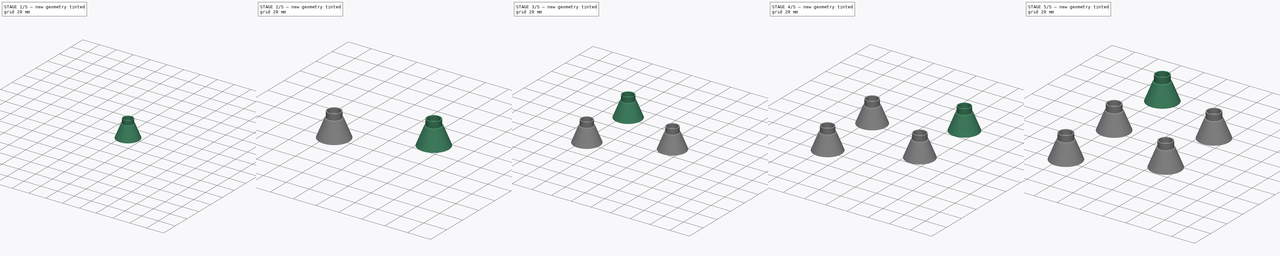
[diagram: build sequence overview — one tinted view per stage of 5, left to right]
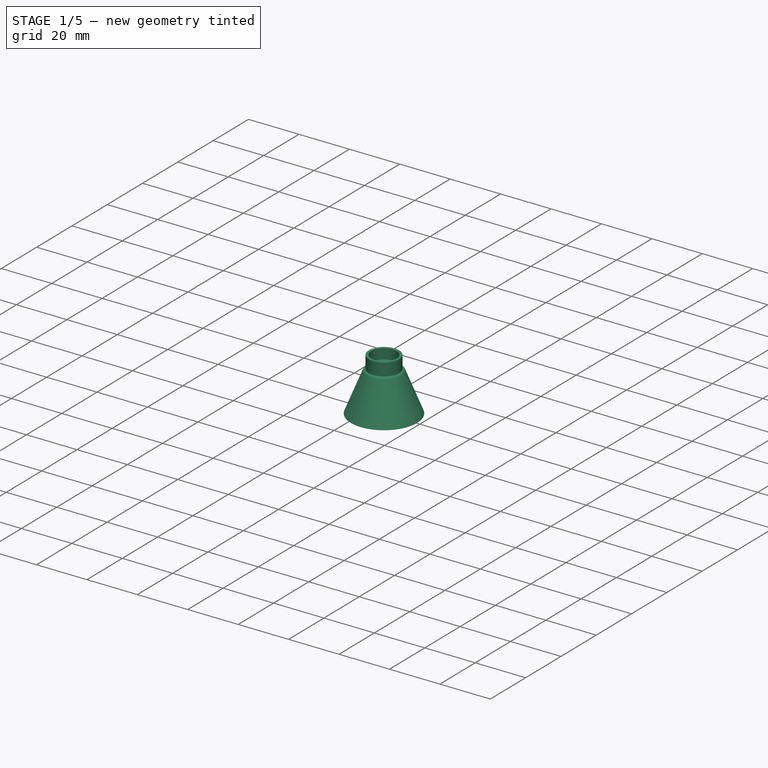
[diagram: stage 1 of 5 — iso view after this stage's code; geometry added in this stage tinted green]
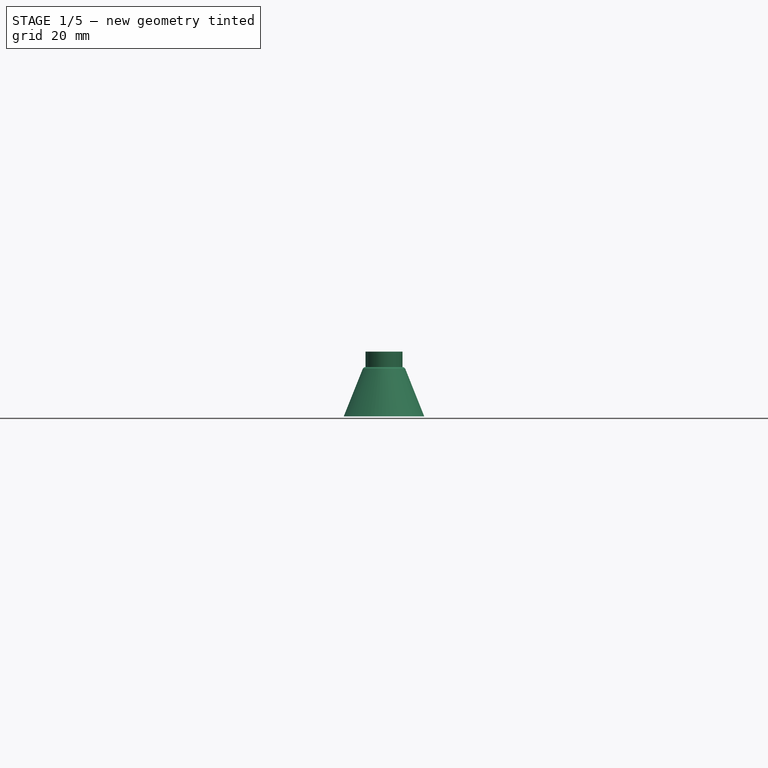
[diagram: stage 1 of 5 — front view after this stage's code; geometry added in this stage tinted green]
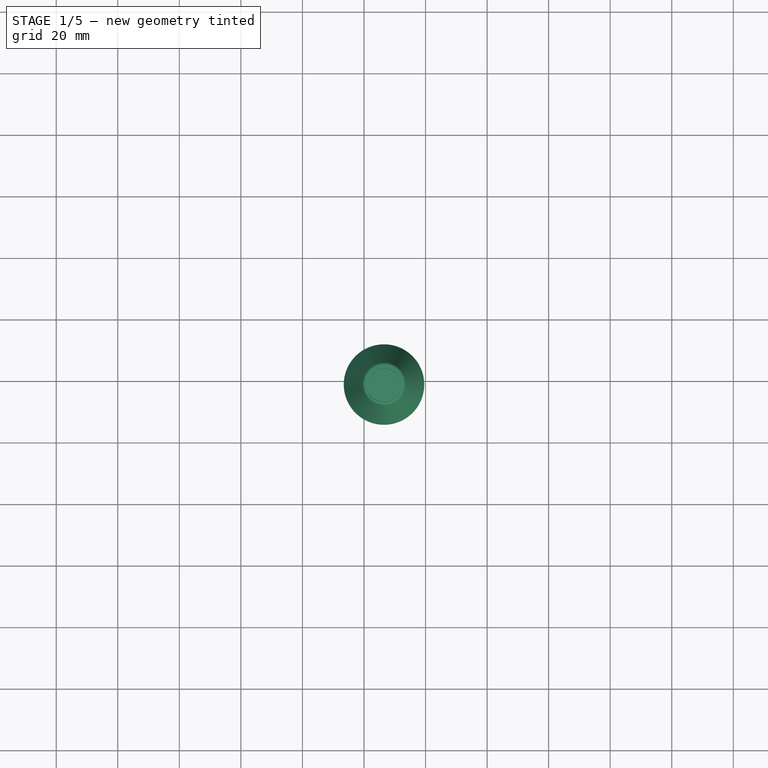
[diagram: stage 1 of 5 — top view after this stage's code; geometry added in this stage tinted green]
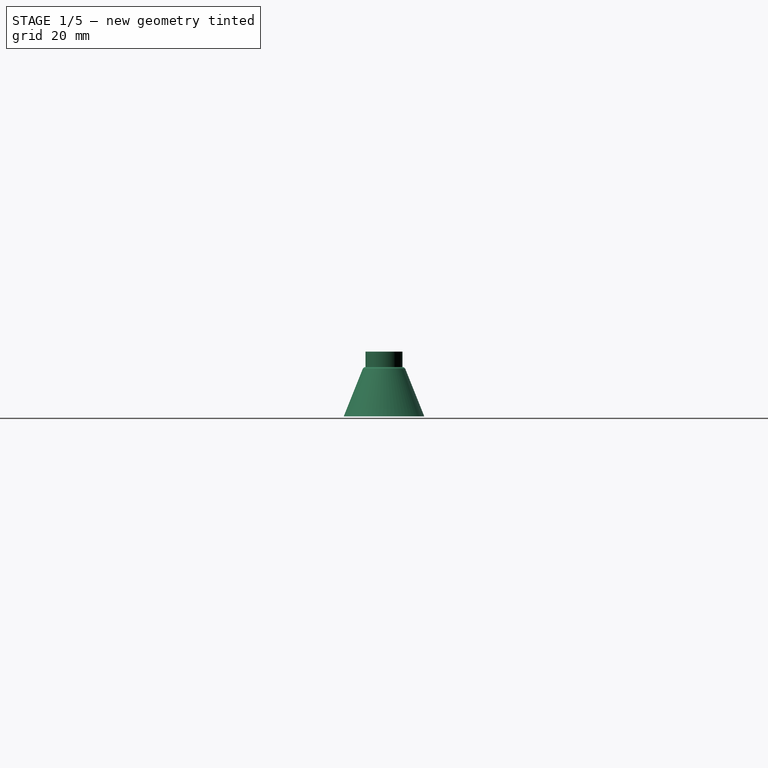
[diagram: stage 1 of 5 — right view after this stage's code; geometry added in this stage tinted green]
FCSTD DOCUMENT  (FreeCAD 0.20R26720 (Git))
Label: nudge_lamp_holder__new3
License: All rights reserved
LicenseURL: http://en.wikipedia.org/wiki/All_rights_reserved
objects: Sketcher::SketchObject×7, PartDesign::Pad×6, PartDesign::Body×6, PartDesign::AdditiveCone×5, PartDesign::Thickness×5, PartDesign::Pocket×5, PartDesign::Hole×5, PartDesign::ShapeBinder×5
note: 70 computed .brp shape members not serialized (recipe doc carries the construction recipe); baked Part::Feature solids carry a one-line shape summary decoded from their .brp

FEATURE [Sketcher::SketchObject] Sketch
  FullyConstrained = true
  MapMode = 5
  sketch-geometry (13):
    g0: LineSegment StartX=-47.5 StartY=80 StartZ=0 EndX=47.5 EndY=80 EndZ=0
    g1: LineSegment StartX=47.5 StartY=80 StartZ=0 EndX=47.5 EndY=-80 EndZ=0
    g2: LineSegment StartX=47.5 StartY=-80 StartZ=0 EndX=-47.5 EndY=-80 EndZ=0
    g3: LineSegment StartX=-47.5 StartY=-80 StartZ=0 EndX=-47.5 EndY=80 EndZ=0
    g4: Circle CenterX=-33.5 CenterY=59 CenterZ=0 NormalX=0 NormalY=0 NormalZ=1 AngleXU=0 Radius=11.5
    g5: Circle CenterX=-33.5 CenterY=-1 CenterZ=0 NormalX=0 NormalY=0 NormalZ=1 AngleXU=0 Radius=11.5
    g6: Circle CenterX=-33.5 CenterY=-61 CenterZ=0 NormalX=0 NormalY=0 NormalZ=1 AngleXU=0 Radius=11.5
    g7: Circle CenterX=32.5 CenterY=29 CenterZ=0 NormalX=0 NormalY=0 NormalZ=1 AngleXU=0 Radius=11.5
    g8: Circle CenterX=32.5 CenterY=-31 CenterZ=0 NormalX=0 NormalY=0 NormalZ=1 AngleXU=0 Radius=11.5
    g9: Circle CenterX=42.5 CenterY=75 CenterZ=0 NormalX=0 NormalY=0 NormalZ=1 AngleXU=0 Radius=2.5
    g10: Circle CenterX=-42.5 CenterY=75 CenterZ=0 NormalX=0 NormalY=0 NormalZ=1 AngleXU=0 Radius=2.5
    g11: Circle CenterX=42.5 CenterY=-75 CenterZ=0 NormalX=0 NormalY=0 NormalZ=1 AngleXU=0 Radius=2.5
    g12: Circle CenterX=-42.5 CenterY=-75 CenterZ=0 NormalX=0 NormalY=0 NormalZ=1 AngleXU=0 Radius=2.5
  constraints (37):
    c: Coincident(g0,g1)
    c: Coincident(g1,g2)
    c: Coincident(g2,g3)
    c: Coincident(g3,g0)
    c: Horizontal(g2)
    c: Vertical(g1)
    c: Symmetric(g0,g0,g-2)
    c: Symmetric(g0,g2,g-1)
    c: Distance(g0) = 95
    c: Distance(g1) = 160
    c: Equal(g4,g5)
    c: Equal(g5,g6)
    c: Equal(g6,g8)
    c: Equal(g8,g7)
    c: Diameter(g4) = 23
    c: DistanceX(g4,g7) = 66
    c: DistanceY(g7,g4) = 30
    c: DistanceY(g5,g7) = 30
    c: DistanceY(g8,g5) = 30
    c: DistanceY(g6,g8) = 30
    c: DistanceX(g5,g7) = 66
    c: DistanceX(g5,g8) = 66
    c: DistanceX(g6,g8) = 66
    c: DistanceY(g4,g0) = 21
    c: DistanceX(g0,g4) = 14
    c: Equal(g10,g9)
    c: Equal(g9,g12)
    c: Equal(g12,g11)
    c: Diameter(g10) = 5
    c: DistanceY(g10,g0) = 5
    c: DistanceX(g0,g10) = 5
    c: DistanceX(g2,g12) = 5
    c: DistanceY(g2,g12) = 5
    c: DistanceY(g1,g11) = 5
    c: DistanceX(g11,g1) = 5
    c: DistanceX(g9,g0) = 5
    c: DistanceY(g9,g0) = 5
FEATURE [PartDesign::Pad] Pad
  Direction = (0,0,1)
  Length = 1
  Length2 = 100
  Profile = -> Sketch
  Refine = true
  Type = 0
FEATURE [PartDesign::AdditiveCone] Cone004
  Angle = 360
  AttacherType = Attacher::AttachEngine3D
  AttachmentOffset = pos=(0,0,0.2) rot=(0,0,1;0rad)
  Height = 15
  MapMode = 11
  Placement = pos=(-33.5,-61,1.2) rot=(0,0,1;1.5708rad)
  Radius1 = 12
  Radius2 = 6
  Support = -> [Pad]
FEATURE [PartDesign::Thickness] Thickness004
  Base = -> Cone004 [Face3]
  BaseFeature = -> Cone004
  Intersection = false
  Join = 0
  Mode = 0
  SupportTransform = false
  Value = 1
FEATURE [PartDesign::Pad] Pad001
  BaseFeature = -> Thickness004
  Direction = (0,0,1)
  Length = 5
  Length2 = 100
  Profile = -> Thickness004 [Face6]
  Type = 0
FEATURE [Sketcher::SketchObject] Sketch006
  ExternalGeometry = -> [Pad001]
  FullyConstrained = true
  MapMode = 5
  Placement = pos=(0,0,22.2) rot=(0,0,1;0rad)
  Support = -> [Pad001]
  sketch-geometry (1):
    g0: Circle CenterX=-33.5 CenterY=-61 CenterZ=0 NormalX=0 NormalY=0 NormalZ=1 AngleXU=0 Radius=5
  constraints (2):
    c: Coincident(g0,g-3)
    c: Diameter(g0) = 10
FEATURE [PartDesign::Pocket] Pocket004
  BaseFeature = -> Pad001
  Direction = (0,0,-1)
  Length = 4
  Length2 = 100
  Profile = -> Sketch006
  ReferenceAxis = -> Sketch006 [N_Axis]
  Type = 0
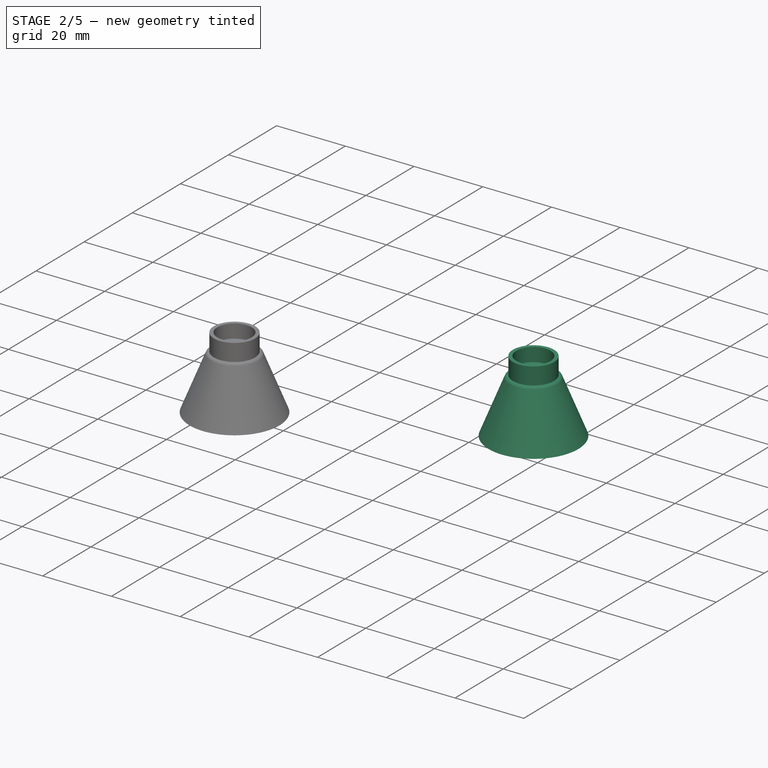
[diagram: stage 2 of 5 — iso view after this stage's code; geometry added in this stage tinted green]
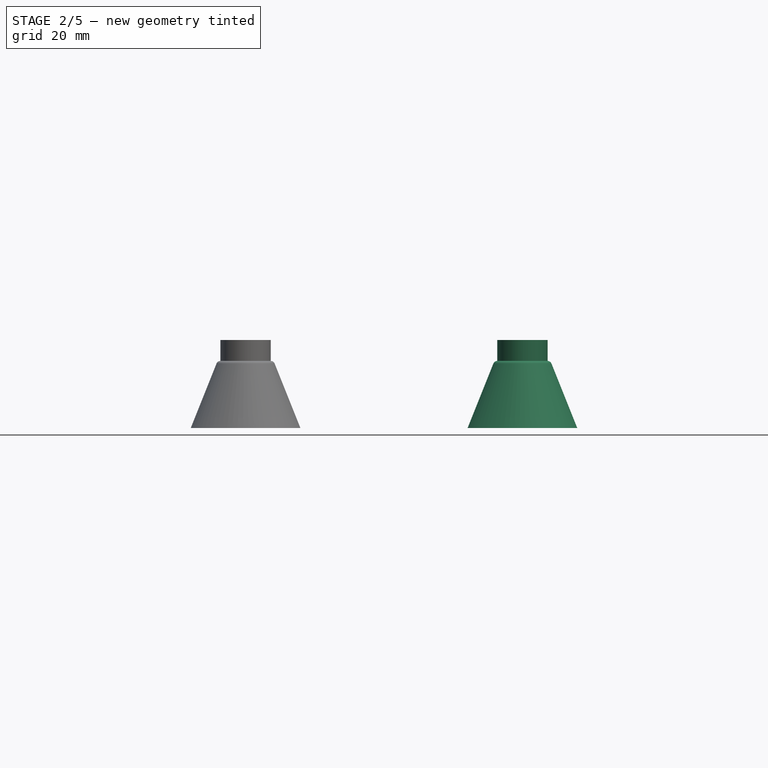
[diagram: stage 2 of 5 — front view after this stage's code; geometry added in this stage tinted green]
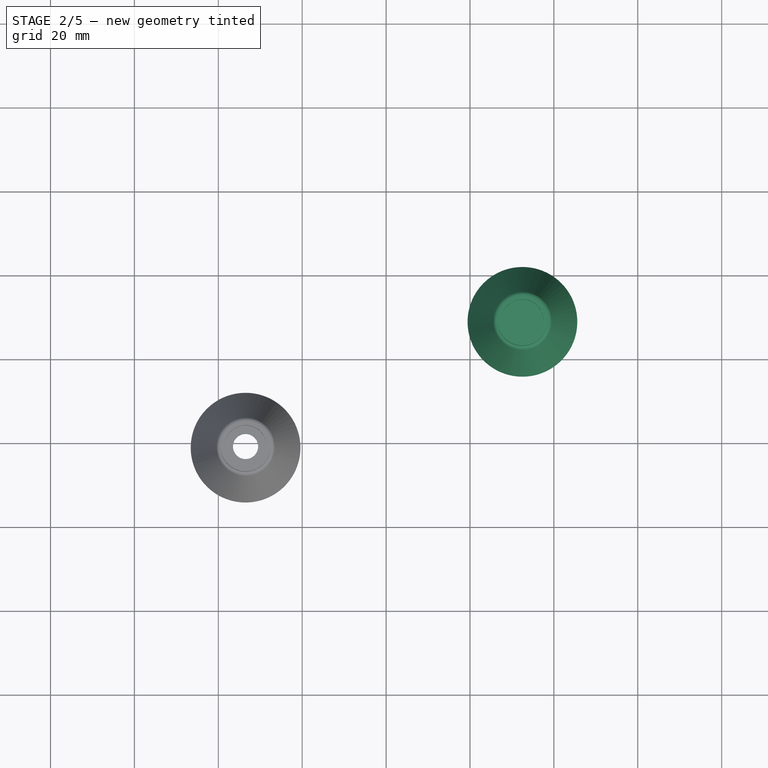
[diagram: stage 2 of 5 — top view after this stage's code; geometry added in this stage tinted green]
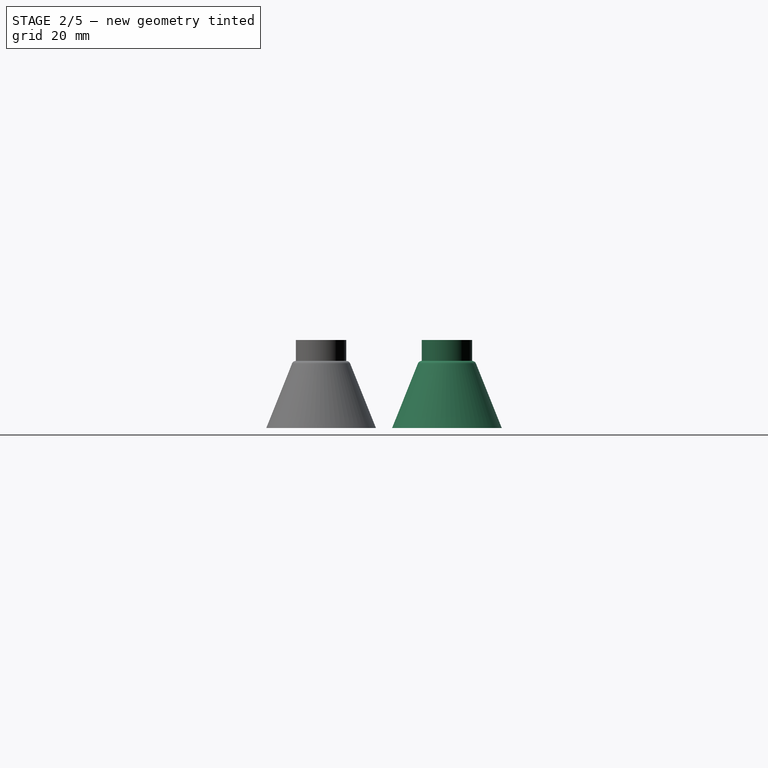
[diagram: stage 2 of 5 — right view after this stage's code; geometry added in this stage tinted green]
FEATURE [PartDesign::AdditiveCone] Cone003
  Angle = 360
  AttacherType = Attacher::AttachEngine3D
  AttachmentOffset = pos=(0,0,0.2) rot=(0,0,1;0rad)
  Height = 15
  MapMode = 11
  Placement = pos=(32.5,-31,1.2) rot=(0,0,1;1.5708rad)
  Radius1 = 12
  Radius2 = 6
  Support = -> [Pad]
FEATURE [PartDesign::Thickness] Thickness003
  Base = -> Cone003 [Face3]
  BaseFeature = -> Cone003
  Intersection = false
  Join = 0
  Mode = 0
  SupportTransform = false
  Value = 1
FEATURE [PartDesign::Pad] Pad002
  BaseFeature = -> Thickness003
  Direction = (0,0,1)
  Length = 5
  Length2 = 100
  Profile = -> Thickness003 [Face6]
  Type = 0
FEATURE [Sketcher::SketchObject] Sketch005
  ExternalGeometry = -> [Pad002]
  FullyConstrained = true
  MapMode = 5
  Placement = pos=(0,0,22.2) rot=(0,0,1;0rad)
  Support = -> [Pad002]
  sketch-geometry (1):
    g0: Circle CenterX=32.5 CenterY=-31 CenterZ=0 NormalX=0 NormalY=0 NormalZ=1 AngleXU=0 Radius=5
  constraints (2):
    c: Coincident(g0,g-3)
    c: Diameter(g0) = 10
FEATURE [PartDesign::Pocket] Pocket003
  BaseFeature = -> Pad002
  Direction = (0,0,-1)
  Length = 4
  Length2 = 100
  Profile = -> Sketch005
  ReferenceAxis = -> Sketch005 [N_Axis]
  Type = 0
FEATURE [PartDesign::Hole] Hole004
  BaseFeature = -> Pocket004
  CustomThreadClearance = 0
  Depth = 25
  DepthType = 0
  Diameter = 6
  DrillForDepth = false
  DrillPoint = 1
  DrillPointAngle = 118
  HoleCutCountersinkAngle = 90
  HoleCutCustomValues = false
  HoleCutDepth = 0
  HoleCutDiameter = 6.1
  HoleCutType = 0
  ModelThread = false
  Profile = -> Pocket004 [Face9]
  Tapered = false
  TaperedAngle = 90
  ThreadClass = 0
  ThreadDepth = 25
  ThreadDepthType = 0
  ThreadDirection = 0
  ThreadFit = 0
  ThreadSize = 0
  ThreadType = 0
  Threaded = false
  UseCustomThreadClearance = false
FEATURE [PartDesign::ShapeBinder] ShapeBinder
  Placement = pos=(0,0,1) rot=(0,0,1;0rad)
  Support = -> [Pad]
  TraceSupport = false
FEATURE [PartDesign::Body] Body001  label="Reflector1"
  Group = -> [Cone,Thickness,Pad005,Sketch001,Sketch002,Pocket,Hole,ShapeBinder]
  Origin = -> Origin001
  Tip = -> Hole
FEATURE [PartDesign::ShapeBinder] ShapeBinder001
  Placement = pos=(0,0,1) rot=(0,0,1;0rad)
  Support = -> [Pad]
  TraceSupport = false
FEATURE [PartDesign::Body] Body002  label="Reflector2"
  Group = -> [Cone001,Thickness001,Pad004,Sketch003,Pocket001,Hole001,ShapeBinder001]
  Origin = -> Origin002
  Tip = -> Hole001
FEATURE [PartDesign::ShapeBinder] ShapeBinder002
  Placement = pos=(0,0,1) rot=(0,0,1;0rad)
  Support = -> [Pad]
  TraceSupport = false
FEATURE [PartDesign::Body] Body003  label="Reflector3"
  Group = -> [Cone002,Thickness002,Pad003,Sketch004,Pocket002,Hole002,ShapeBinder002]
  Origin = -> Origin003
  Tip = -> Hole002
FEATURE [PartDesign::ShapeBinder] ShapeBinder003
  Placement = pos=(0,0,1) rot=(0,0,1;0rad)
  Support = -> [Pad]
  TraceSupport = false
FEATURE [PartDesign::Body] Body004  label="Reflector4"
  Group = -> [Cone003,Thickness003,Pad002,Sketch005,Pocket003,Hole003,ShapeBinder003]
  Origin = -> Origin004
  Tip = -> Hole003
FEATURE [PartDesign::ShapeBinder] ShapeBinder004
  Placement = pos=(0,0,1) rot=(0,0,1;0rad)
  Support = -> [Pad]
  TraceSupport = false
FEATURE [PartDesign::Body] Body005  label="Reflector5"
  Group = -> [Cone004,Thickness004,Pad001,Sketch006,Pocket004,Hole004,ShapeBinder004]
  Origin = -> Origin005
  Tip = -> Hole004
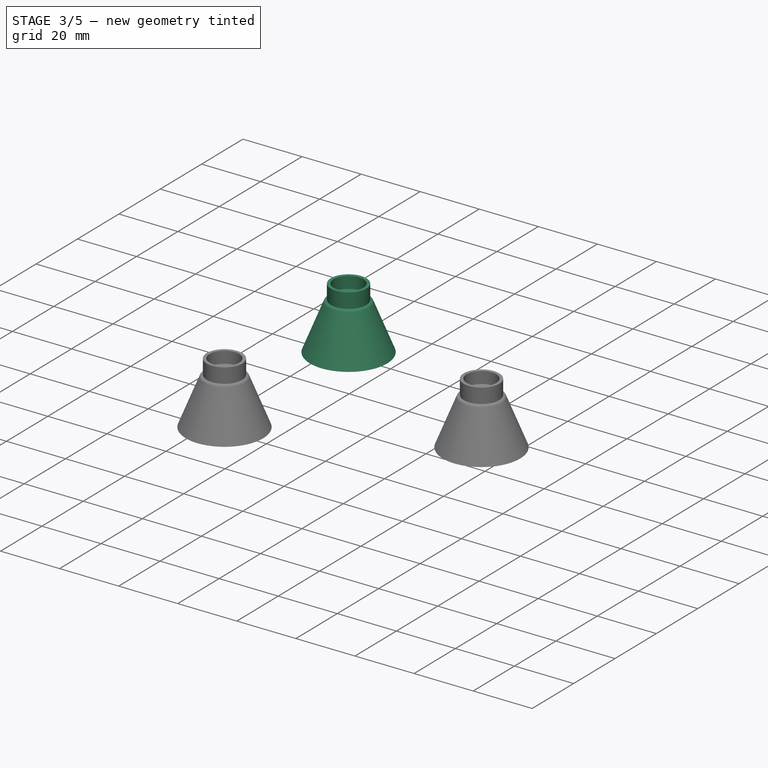
[diagram: stage 3 of 5 — iso view after this stage's code; geometry added in this stage tinted green]
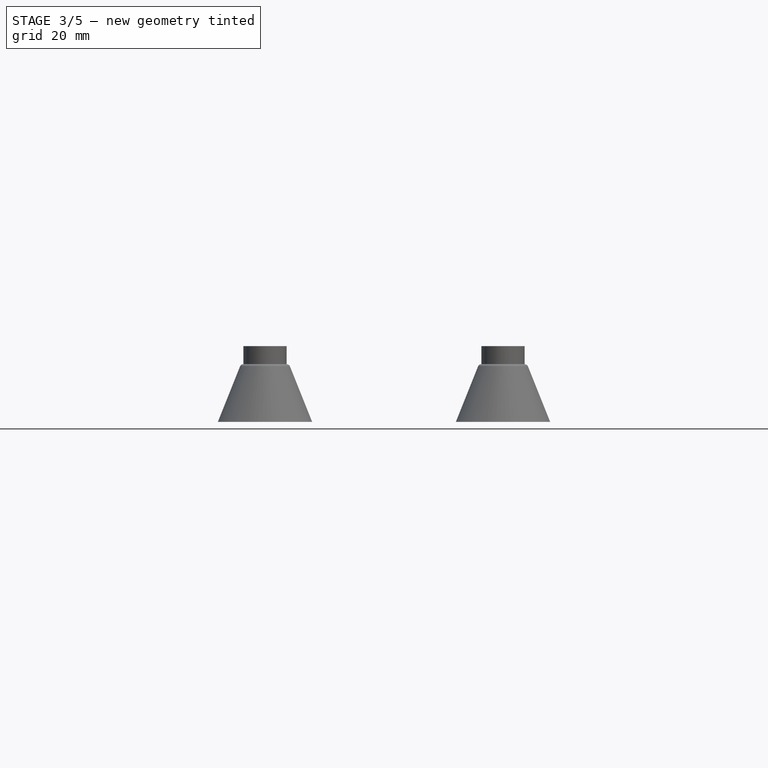
[diagram: stage 3 of 5 — front view after this stage's code; geometry added in this stage tinted green]
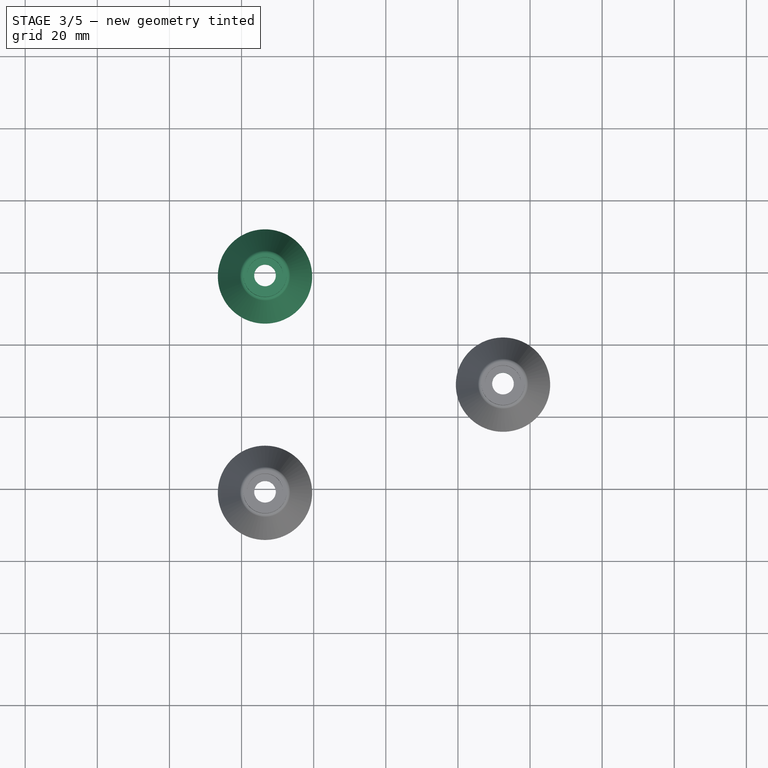
[diagram: stage 3 of 5 — top view after this stage's code; geometry added in this stage tinted green]
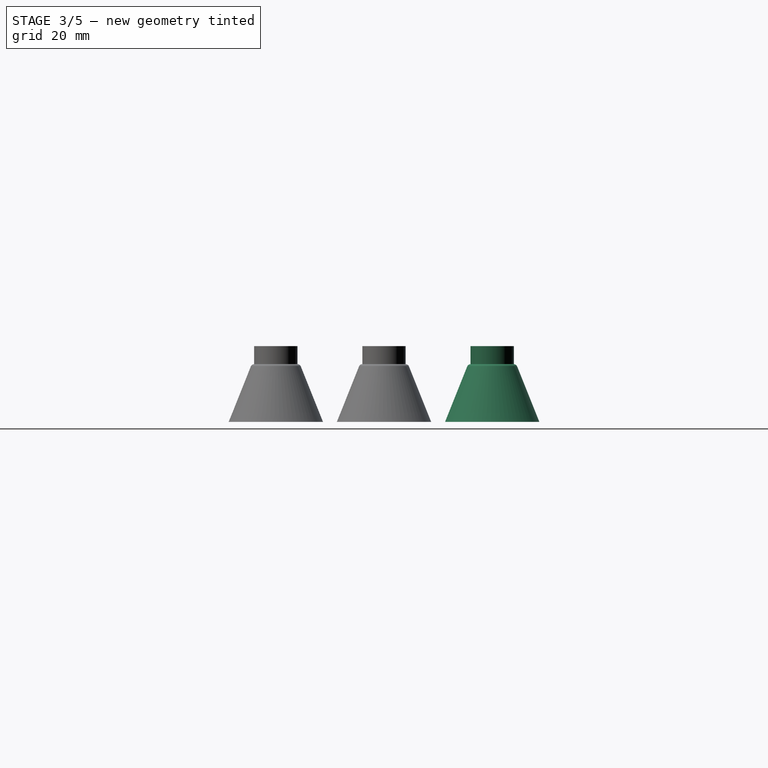
[diagram: stage 3 of 5 — right view after this stage's code; geometry added in this stage tinted green]
FEATURE [PartDesign::AdditiveCone] Cone002
  Angle = 360
  AttacherType = Attacher::AttachEngine3D
  AttachmentOffset = pos=(0,0,0.2) rot=(0,0,1;0rad)
  Height = 15
  MapMode = 11
  Placement = pos=(-33.5,-1,1.2) rot=(0,0,1;1.5708rad)
  Radius1 = 12
  Radius2 = 6
  Support = -> [Pad]
FEATURE [PartDesign::Thickness] Thickness002
  Base = -> Cone002 [Face3]
  BaseFeature = -> Cone002
  Intersection = false
  Join = 0
  Mode = 0
  SupportTransform = false
  Value = 1
FEATURE [PartDesign::Pad] Pad003
  BaseFeature = -> Thickness002
  Direction = (0,0,1)
  Length = 5
  Length2 = 100
  Profile = -> Thickness002 [Face6]
  Type = 0
FEATURE [Sketcher::SketchObject] Sketch004
  ExternalGeometry = -> [Pad003]
  FullyConstrained = true
  MapMode = 5
  Placement = pos=(0,0,22.2) rot=(0,0,1;0rad)
  Support = -> [Pad003]
  sketch-geometry (1):
    g0: Circle CenterX=-33.5 CenterY=-1 CenterZ=0 NormalX=0 NormalY=0 NormalZ=1 AngleXU=0 Radius=5
  constraints (2):
    c: Coincident(g0,g-3)
    c: Diameter(g0) = 10
FEATURE [PartDesign::Pocket] Pocket002
  BaseFeature = -> Pad003
  Direction = (0,0,-1)
  Length = 4
  Length2 = 100
  Profile = -> Sketch004
  ReferenceAxis = -> Sketch004 [N_Axis]
  Type = 0
FEATURE [PartDesign::Hole] Hole002
  BaseFeature = -> Pocket002
  CustomThreadClearance = 0
  Depth = 25
  DepthType = 0
  Diameter = 6
  DrillForDepth = false
  DrillPoint = 1
  DrillPointAngle = 118
  HoleCutCountersinkAngle = 90
  HoleCutCustomValues = false
  HoleCutDepth = 0
  HoleCutDiameter = 6.1
  HoleCutType = 0
  ModelThread = false
  Profile = -> Pocket002 [Face9]
  Tapered = false
  TaperedAngle = 90
  ThreadClass = 0
  ThreadDepth = 25
  ThreadDepthType = 0
  ThreadDirection = 0
  ThreadFit = 0
  ThreadSize = 0
  ThreadType = 0
  Threaded = false
  UseCustomThreadClearance = false
FEATURE [PartDesign::Hole] Hole003
  BaseFeature = -> Pocket003
  CustomThreadClearance = 0
  Depth = 25
  DepthType = 0
  Diameter = 6
  DrillForDepth = false
  DrillPoint = 1
  DrillPointAngle = 118
  HoleCutCountersinkAngle = 90
  HoleCutCustomValues = false
  HoleCutDepth = 0
  HoleCutDiameter = 6.1
  HoleCutType = 0
  ModelThread = false
  Profile = -> Pocket003 [Face9]
  Tapered = false
  TaperedAngle = 90
  ThreadClass = 0
  ThreadDepth = 25
  ThreadDepthType = 0
  ThreadDirection = 0
  ThreadFit = 0
  ThreadSize = 0
  ThreadType = 0
  Threaded = false
  UseCustomThreadClearance = false
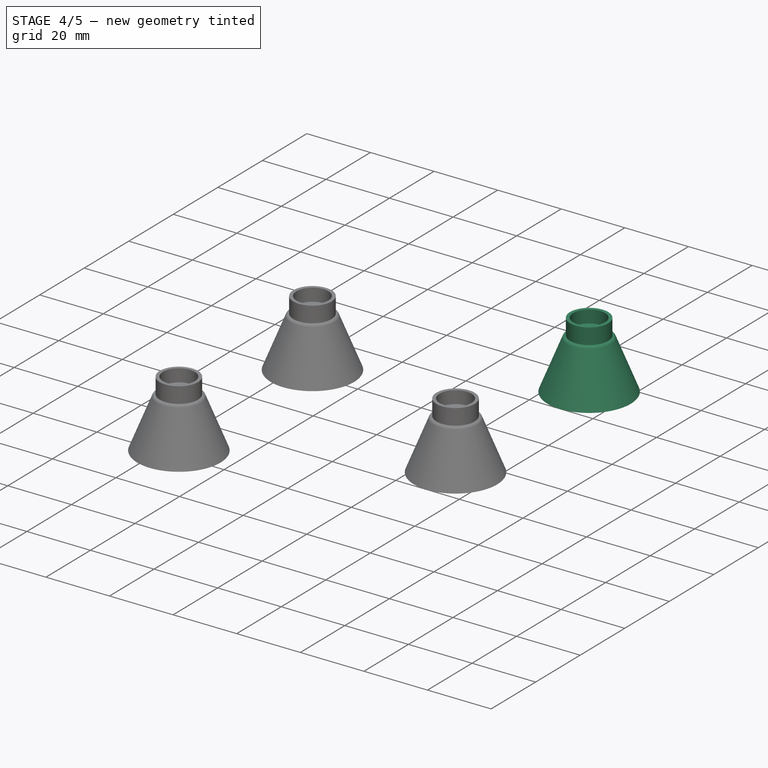
[diagram: stage 4 of 5 — iso view after this stage's code; geometry added in this stage tinted green]
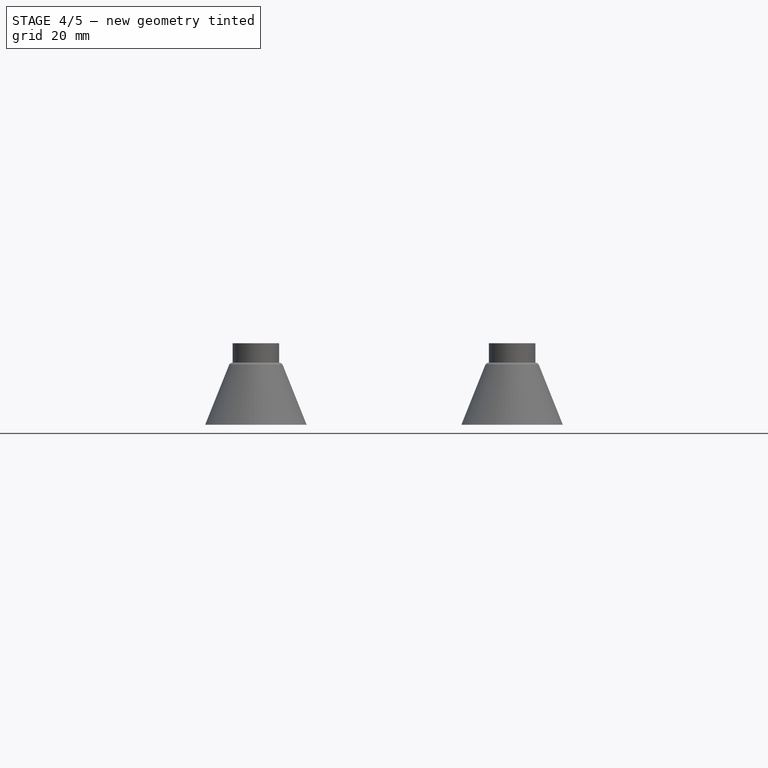
[diagram: stage 4 of 5 — front view after this stage's code; geometry added in this stage tinted green]
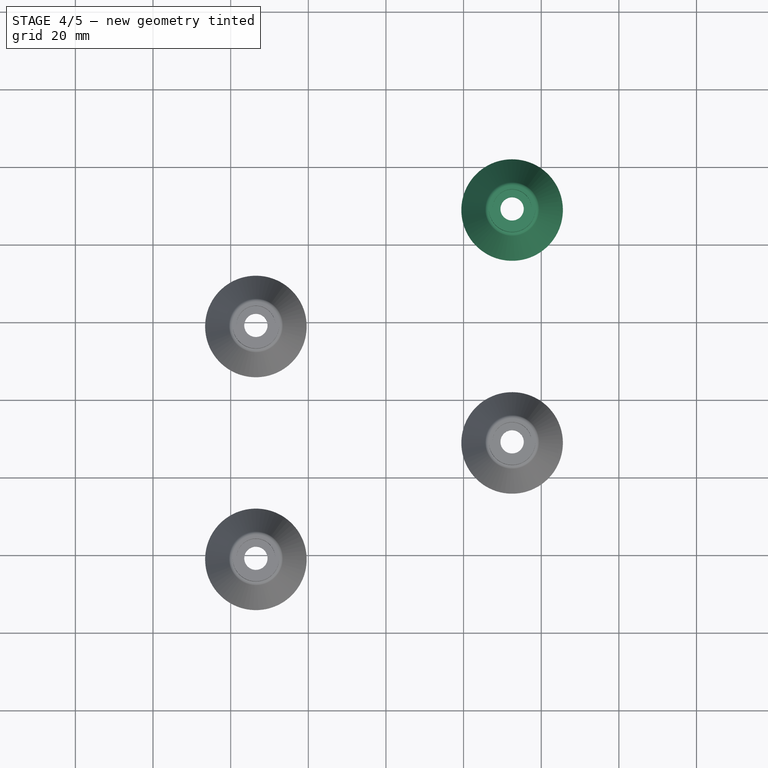
[diagram: stage 4 of 5 — top view after this stage's code; geometry added in this stage tinted green]
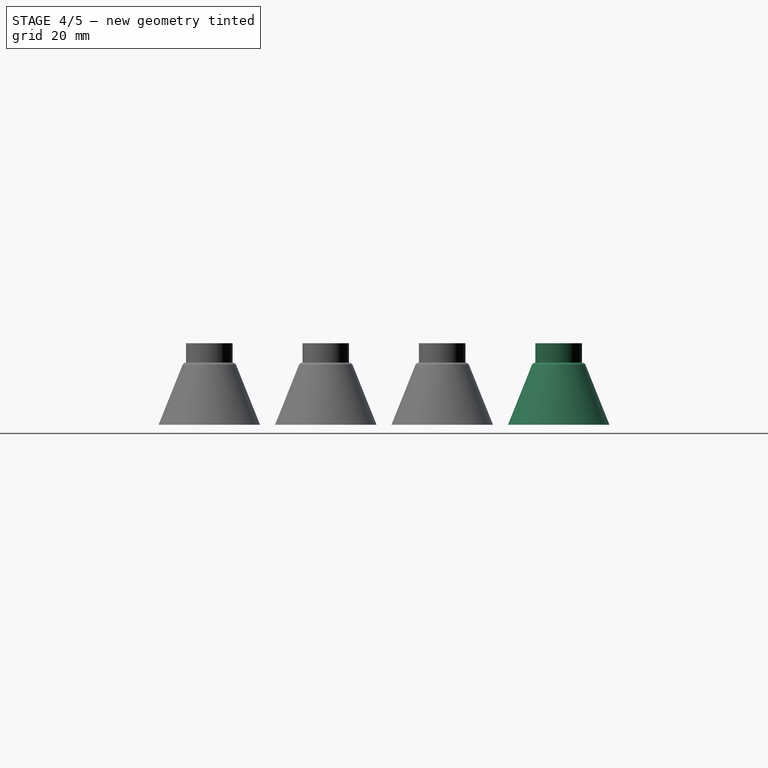
[diagram: stage 4 of 5 — right view after this stage's code; geometry added in this stage tinted green]
FEATURE [PartDesign::AdditiveCone] Cone001
  Angle = 360
  AttacherType = Attacher::AttachEngine3D
  AttachmentOffset = pos=(0,0,0.2) rot=(0,0,1;0rad)
  Height = 15
  MapMode = 11
  Placement = pos=(32.5,29,1.2) rot=(0,0,1;1.5708rad)
  Radius1 = 12
  Radius2 = 6
  Support = -> [Pad]
FEATURE [PartDesign::Thickness] Thickness001
  Base = -> Cone001 [Face3]
  BaseFeature = -> Cone001
  Intersection = false
  Join = 0
  Mode = 0
  SupportTransform = false
  Value = 1
FEATURE [PartDesign::Pad] Pad004
  BaseFeature = -> Thickness001
  Direction = (0,0,1)
  Length = 5
  Length2 = 100
  Profile = -> Thickness001 [Face6]
  Type = 0
FEATURE [Sketcher::SketchObject] Sketch003
  ExternalGeometry = -> [Pad004]
  FullyConstrained = true
  MapMode = 5
  Placement = pos=(0,0,22.2) rot=(0,0,1;0rad)
  Support = -> [Pad004]
  sketch-geometry (1):
    g0: Circle CenterX=32.5 CenterY=29 CenterZ=0 NormalX=0 NormalY=0 NormalZ=1 AngleXU=0 Radius=5
  constraints (2):
    c: Coincident(g0,g-3)
    c: Diameter(g0) = 10
FEATURE [PartDesign::Pocket] Pocket001
  BaseFeature = -> Pad004
  Direction = (0,0,-1)
  Length = 4
  Length2 = 100
  Profile = -> Sketch003
  ReferenceAxis = -> Sketch003 [N_Axis]
  Type = 0
FEATURE [PartDesign::Hole] Hole001
  BaseFeature = -> Pocket001
  CustomThreadClearance = 0
  Depth = 25
  DepthType = 0
  Diameter = 6
  DrillForDepth = false
  DrillPoint = 1
  DrillPointAngle = 118
  HoleCutCountersinkAngle = 90
  HoleCutCustomValues = false
  HoleCutDepth = 0
  HoleCutDiameter = 6.1
  HoleCutType = 0
  ModelThread = false
  Profile = -> Pocket001 [Face9]
  Tapered = false
  TaperedAngle = 90
  ThreadClass = 0
  ThreadDepth = 25
  ThreadDepthType = 0
  ThreadDirection = 0
  ThreadFit = 0
  ThreadSize = 0
  ThreadType = 0
  Threaded = false
  UseCustomThreadClearance = false
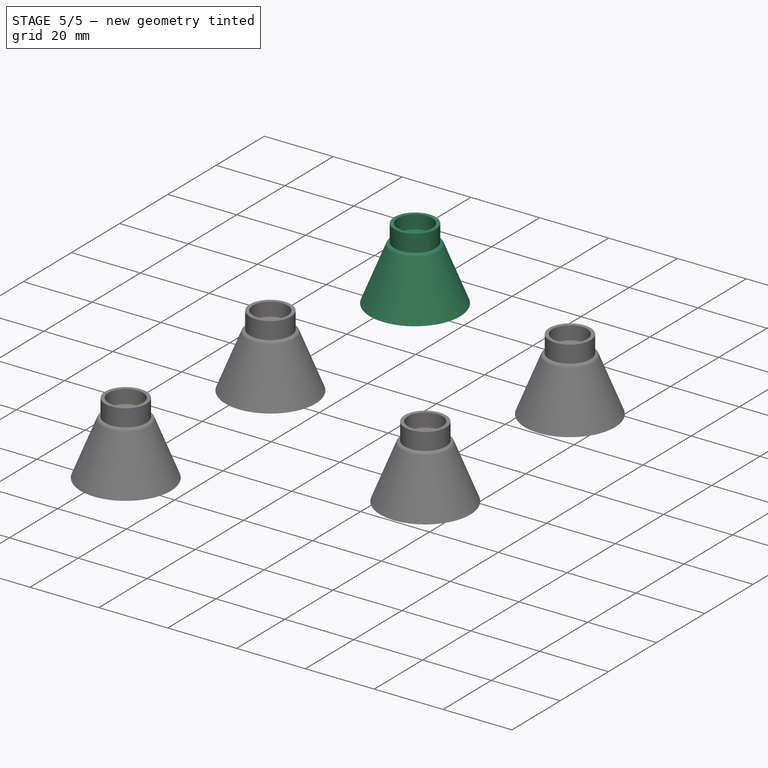
[diagram: stage 5 of 5 — iso view after this stage's code; geometry added in this stage tinted green]
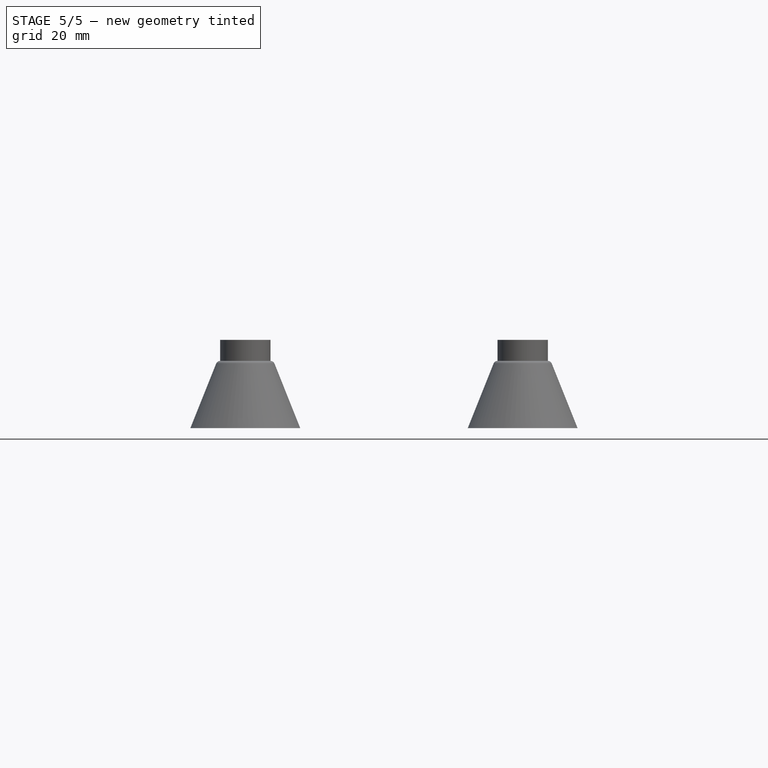
[diagram: stage 5 of 5 — front view after this stage's code; geometry added in this stage tinted green]
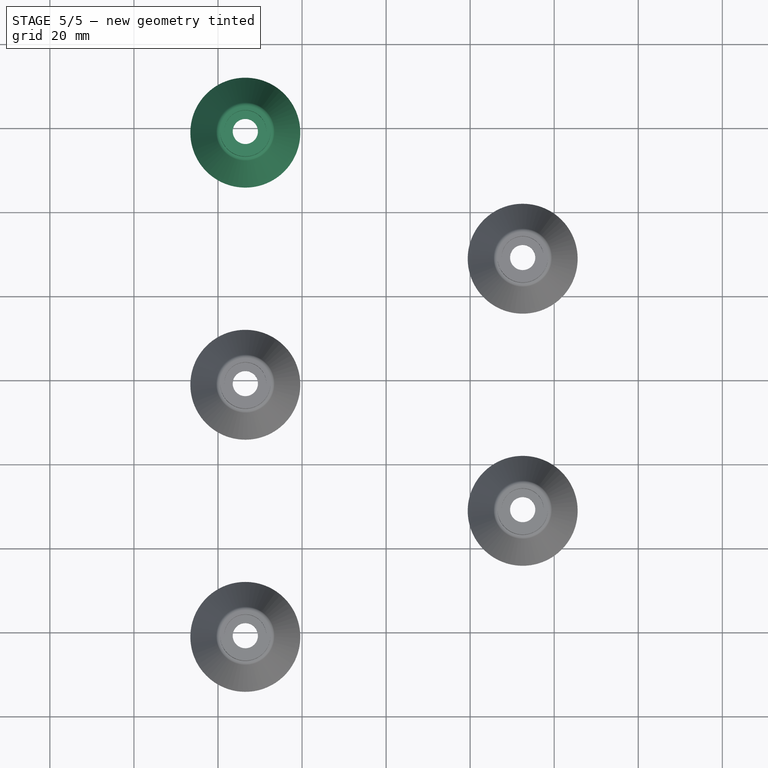
[diagram: stage 5 of 5 — top view after this stage's code; geometry added in this stage tinted green]
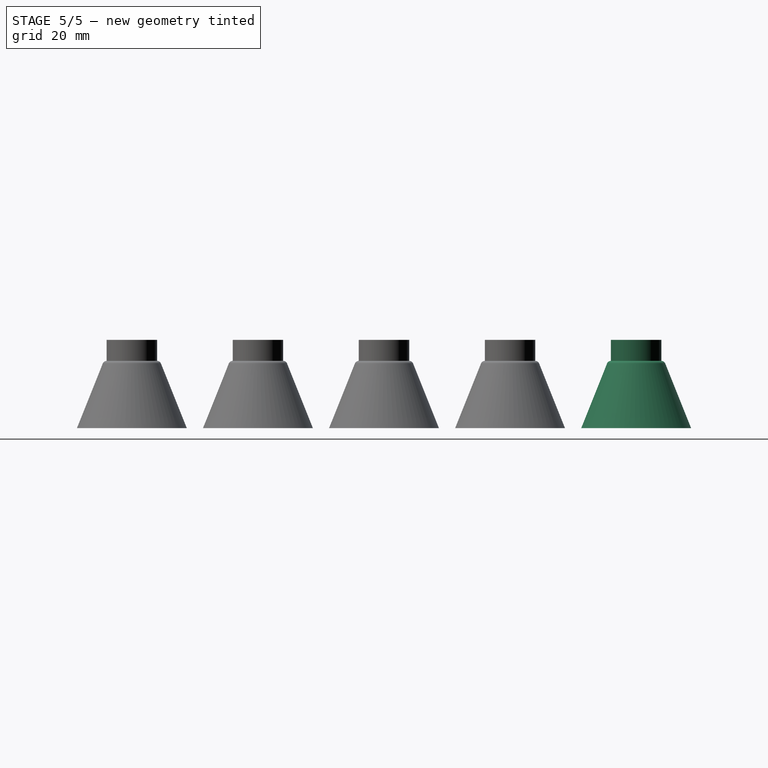
[diagram: stage 5 of 5 — right view after this stage's code; geometry added in this stage tinted green]
FEATURE [PartDesign::Body] Body  label="Baseplate"
  Group = -> [Pad]
  Origin = -> Origin
  Tip = -> Pad
FEATURE [PartDesign::AdditiveCone] Cone
  Angle = 360
  AttacherType = Attacher::AttachEngine3D
  AttachmentOffset = pos=(0,0,0.2) rot=(0,0,1;0rad)
  Height = 15
  MapMode = 11
  Placement = pos=(-33.5,59,1.2) rot=(0,0,1;1.5708rad)
  Radius1 = 12
  Radius2 = 6
  Support = -> [Pad]
  expr: Radius1 = 24 / 2
FEATURE [PartDesign::Thickness] Thickness
  Base = -> Cone [Face3]
  BaseFeature = -> Cone
  Intersection = false
  Join = 0
  Mode = 0
  SupportTransform = false
  Value = 1
FEATURE [PartDesign::Pad] Pad005
  BaseFeature = -> Thickness
  Direction = (0,0,1)
  Length = 5
  Length2 = 100
  Profile = -> Thickness [Face6]
  Type = 0
FEATURE [Sketcher::SketchObject] Sketch001
  FullyConstrained = true
  MapMode = 5
  Placement = pos=(0,0,22.2) rot=(0,0,1;0rad)
  Support = -> [Pad005]
FEATURE [Sketcher::SketchObject] Sketch002
  ExternalGeometry = -> [Pad005]
  FullyConstrained = true
  MapMode = 5
  Placement = pos=(0,0,22.2) rot=(0,0,1;0rad)
  Support = -> [Pad005]
  sketch-geometry (1):
    g0: Circle CenterX=-33.5 CenterY=59 CenterZ=0 NormalX=0 NormalY=0 NormalZ=1 AngleXU=0 Radius=5
  constraints (2):
    c: Coincident(g0,g-3)
    c: Diameter(g0) = 10
FEATURE [PartDesign::Pocket] Pocket
  BaseFeature = -> Pad005
  Direction = (0,0,-1)
  Length = 4
  Length2 = 100
  Profile = -> Sketch002
  ReferenceAxis = -> Sketch002 [N_Axis]
  Type = 0
FEATURE [PartDesign::Hole] Hole
  BaseFeature = -> Pocket
  CustomThreadClearance = 0
  Depth = 25
  DepthType = 0
  Diameter = 6
  DrillForDepth = false
  DrillPoint = 1
  DrillPointAngle = 118
  HoleCutCountersinkAngle = 90
  HoleCutCustomValues = false
  HoleCutDepth = 0
  HoleCutDiameter = 6.1
  HoleCutType = 0
  ModelThread = false
  Profile = -> Pocket [Face9]
  Tapered = false
  TaperedAngle = 90
  ThreadClass = 0
  ThreadDepth = 25
  ThreadDepthType = 0
  ThreadDirection = 0
  ThreadFit = 0
  ThreadSize = 0
  ThreadType = 0
  Threaded = false
  UseCustomThreadClearance = false
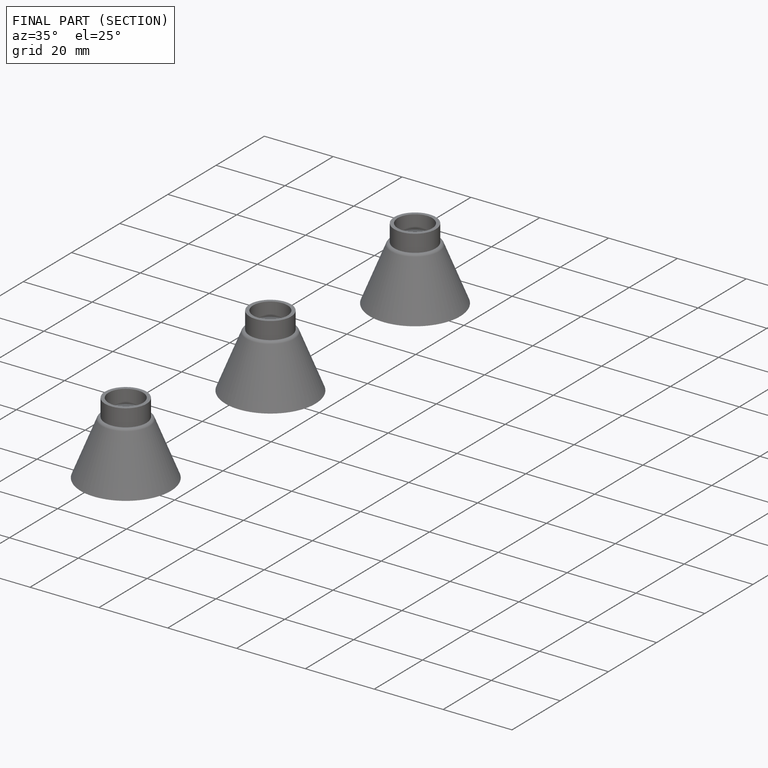
[diagram: finished part — half-section view (interior)]
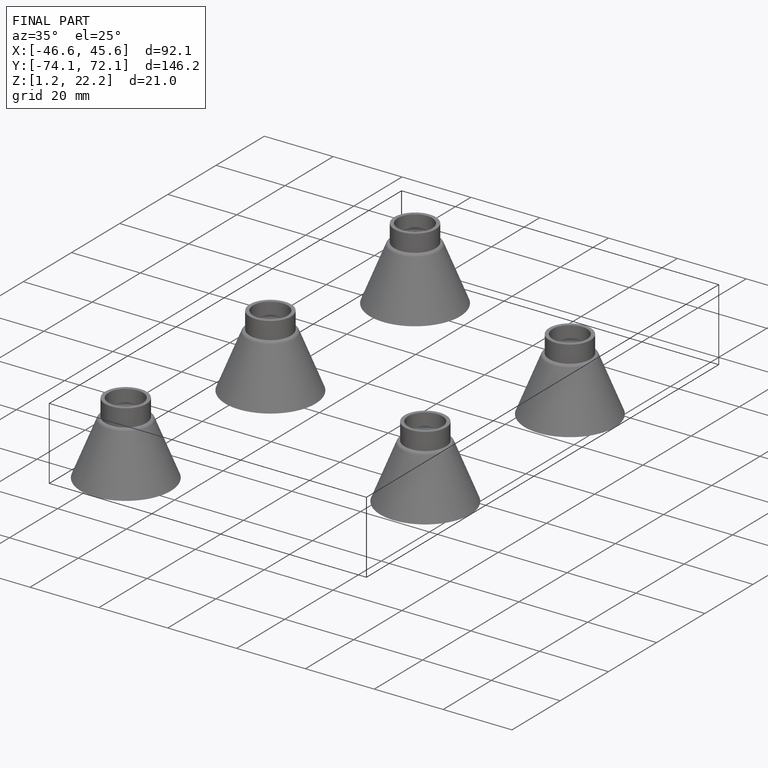
[diagram: finished part — iso view with bounding-box wireframe]
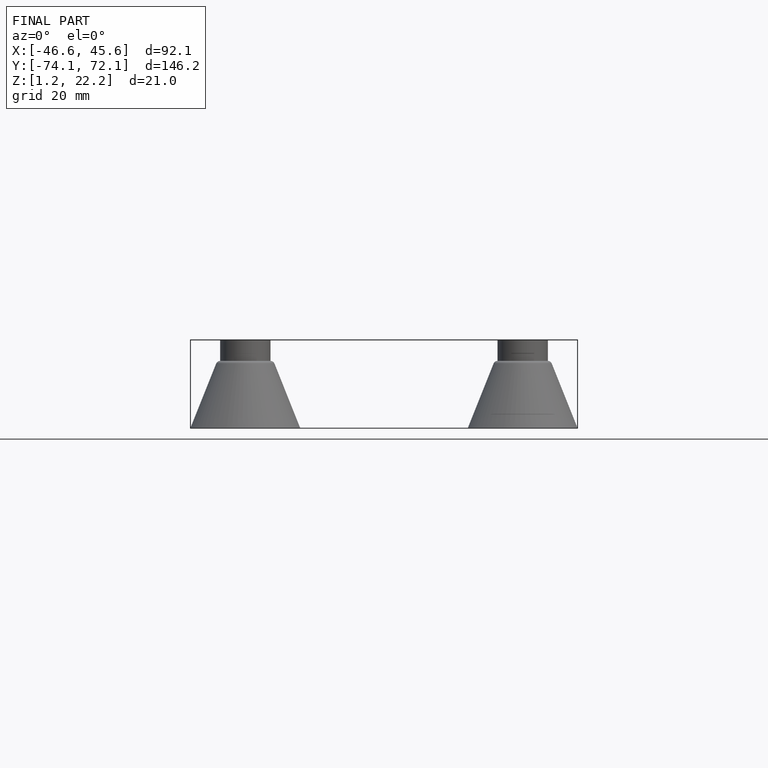
[diagram: finished part — front view with bounding-box wireframe]
